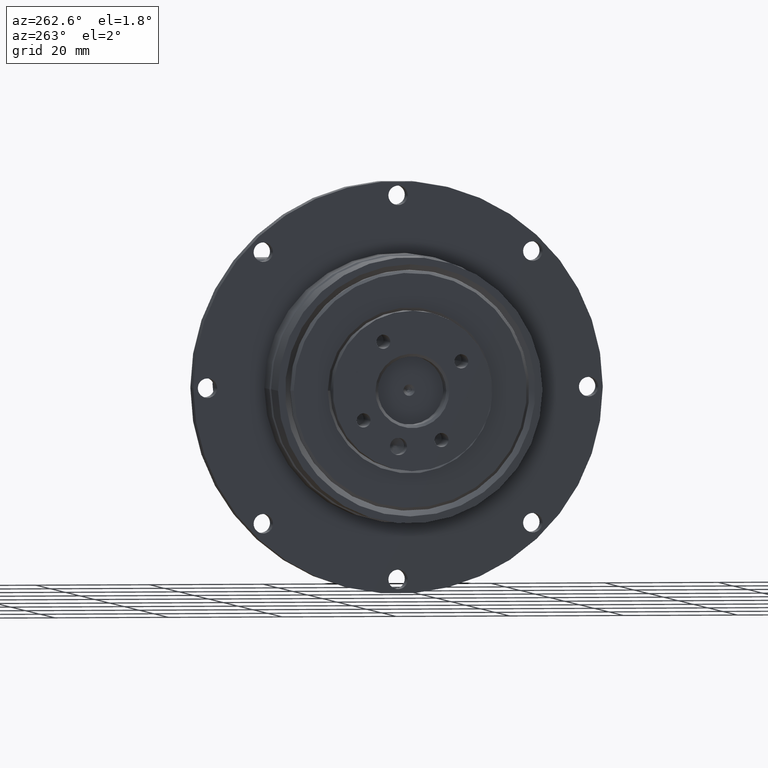
[diagram: clean part render]
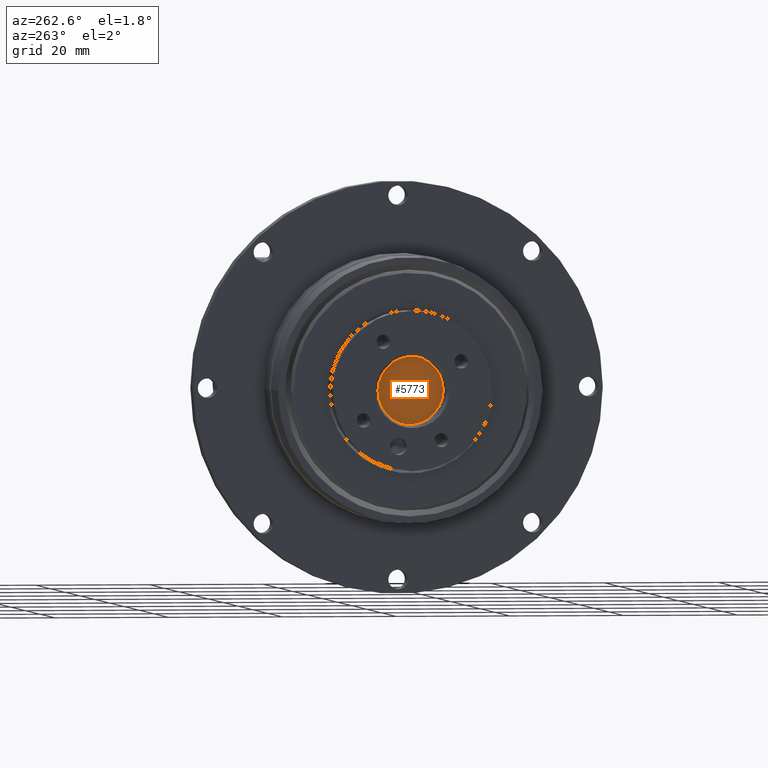
[diagram: same view with one face highlighted and labeled with its STEP entity id]
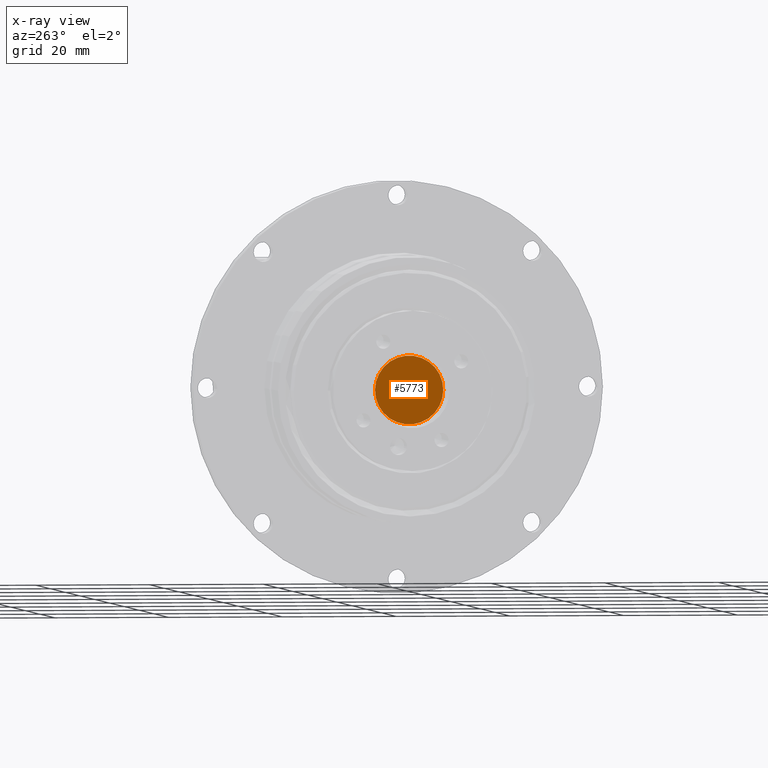
[diagram: x-ray of the same camera — body ghosted, the highlighted face saturated]
A machine part, auxiliary view. The second image highlights one B-rep face of the part: STEP entity #5773.
The next image is the same camera in x-ray: the body ghosted, the highlighted face saturated — about 0% of this face is hidden behind the body in this view.
In plain terms, the highlighted planar face has unit normal (1, -0, 0).
Its self-contained STEP definition (entity closure, byte-faithful):
#861=PLANE('',#6395);
#1103=FACE_BOUND('',#1965,.T.);
#1417=FACE_OUTER_BOUND('',#1964,.T.);
#1964=EDGE_LOOP('',(#4465));
#1965=EDGE_LOOP('',(#4466));
#2436=CIRCLE('',#6375,6.);
#2444=CIRCLE('',#6396,1.);
#2842=VERTEX_POINT('',#9400);
#2850=VERTEX_POINT('',#9429);
#3442=EDGE_CURVE('',#2842,#2842,#2436,.T.);
#3450=EDGE_CURVE('',#2850,#2850,#2444,.T.);
#4465=ORIENTED_EDGE('',*,*,#3442,.F.);
#4466=ORIENTED_EDGE('',*,*,#3450,.F.);
#5773=ADVANCED_FACE('',(#1417,#1103),#861,.F.);
#6375=AXIS2_PLACEMENT_3D('',#9401,#7589,#7590);
#6395=AXIS2_PLACEMENT_3D('',#9428,#7629,#7630);
#6396=AXIS2_PLACEMENT_3D('',#9430,#7631,#7632);
#7589=DIRECTION('center_axis',(1.,-1.48983721341743E-16,3.23635577620662E-15));
#7590=DIRECTION('ref_axis',(6.50731721526339E-16,-0.969347786707734,-0.245692629935898));
#7629=DIRECTION('center_axis',(1.,-1.48983721341743E-16,3.23635577620662E-15));
#7630=DIRECTION('ref_axis',(7.105427357601E-16,-0.969347786707734,-0.245692629935898));
#7631=DIRECTION('center_axis',(-1.,1.48983721341743E-16,-3.23635577620662E-15));
#7632=DIRECTION('ref_axis',(6.50731721526339E-16,-0.969347786707734,-0.245692629935898));
#9400=CARTESIAN_POINT('',(-27.0951631034669,-43.3146700241412,54.3609284289845));
#9401=CARTESIAN_POINT('Origin',(-27.0951631034669,-49.1307567443876,52.8867726493691));
#9428=CARTESIAN_POINT('Origin',(-27.0951631034669,-49.1307567443876,52.8867726493691));
#9429=CARTESIAN_POINT('',(-27.0951631034669,-48.1614089576798,53.132465279305));
#9430=CARTESIAN_POINT('Origin',(-27.0951631034669,-49.1307567443876,52.8867726493691));